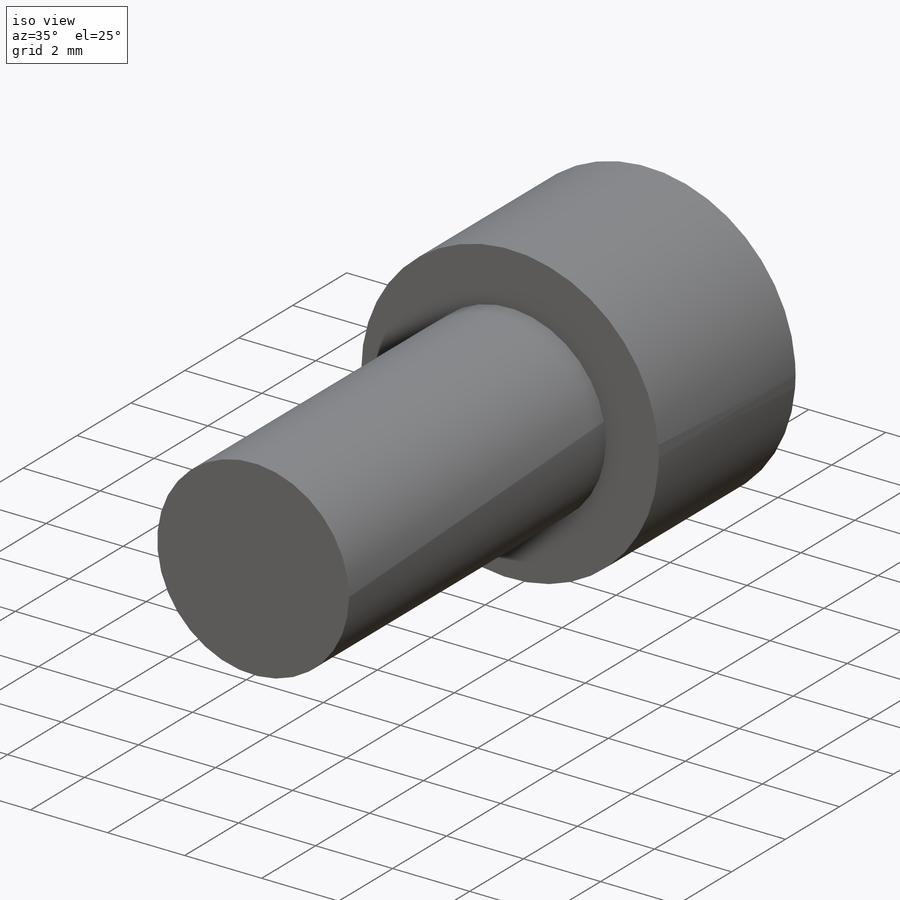
[diagram: iso view]
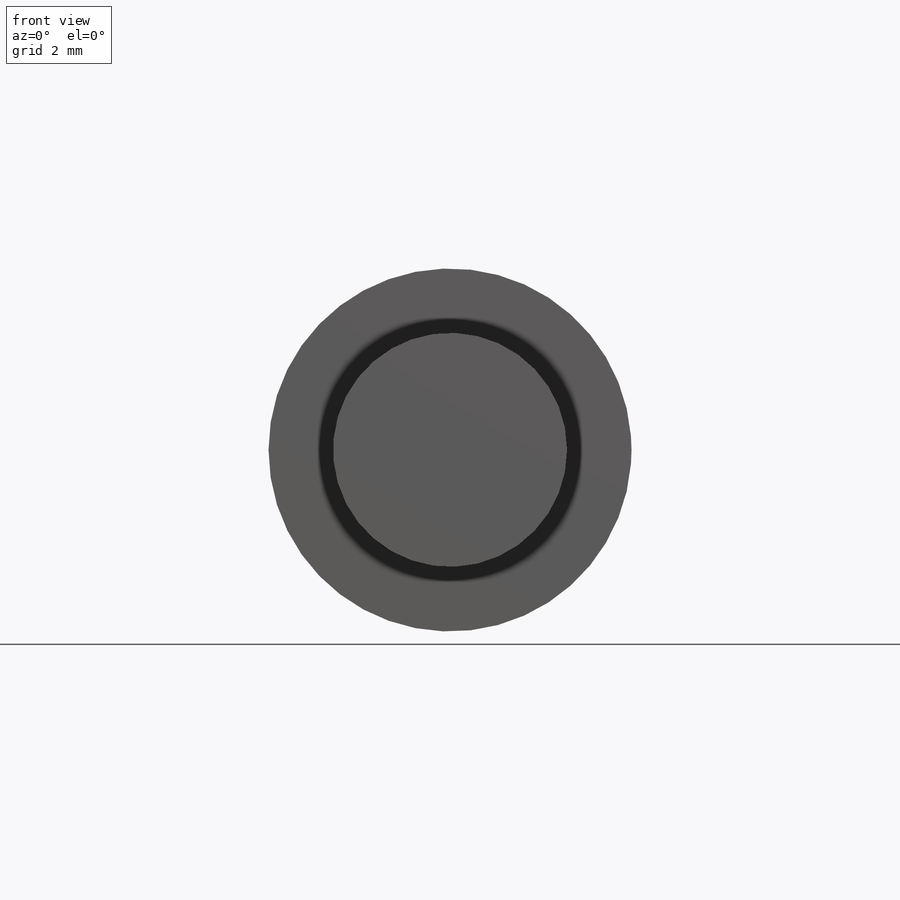
[diagram: front view]
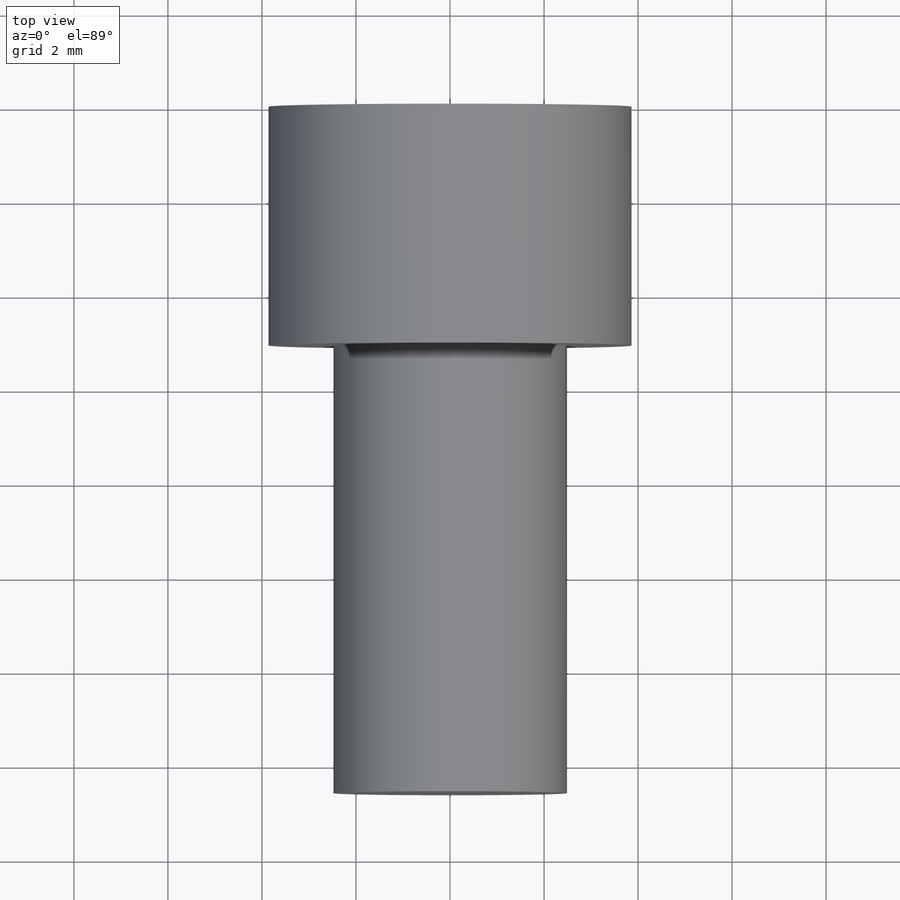
[diagram: top view]
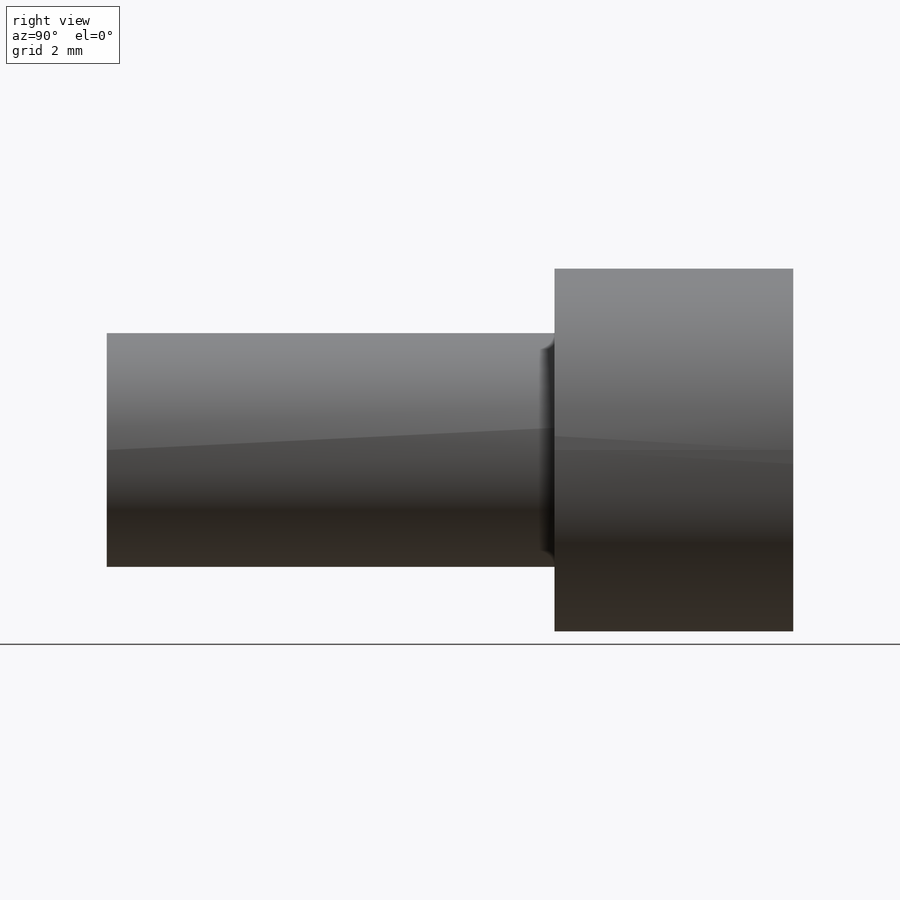
[diagram: right view]
SOLIDWORKS PART (.sldprt)
format: sldprt  version: not decoded by parser v0  size: 167,936 bytes
history: native  units: mm
features: sketch x3, cut_extrude x2, material x1, extrude x1 (+12 scaffold rows collapsed)
feature tree (19):
  scaffold x12  (default folders/planes/origin — collapsed)
  material  "Material <not specified>"
  sketch  "Sketch1"  dims[D1=3.81mm]
  extrude  "Extrude1"  Depth=14.605mm
  sketch  "Sketch2"  dims[D1=6.35mm]
  cut_extrude  "Extrude2"  Depth=9.525mm
  sketch  "Sketch3"
  cut_extrude  "Extrude3"  Depth=3.048mm
decode coverage: 5 of 6 modeling features carry decoded parameters
note: suppression state not decoded; provenance and decode notes live in map.json
